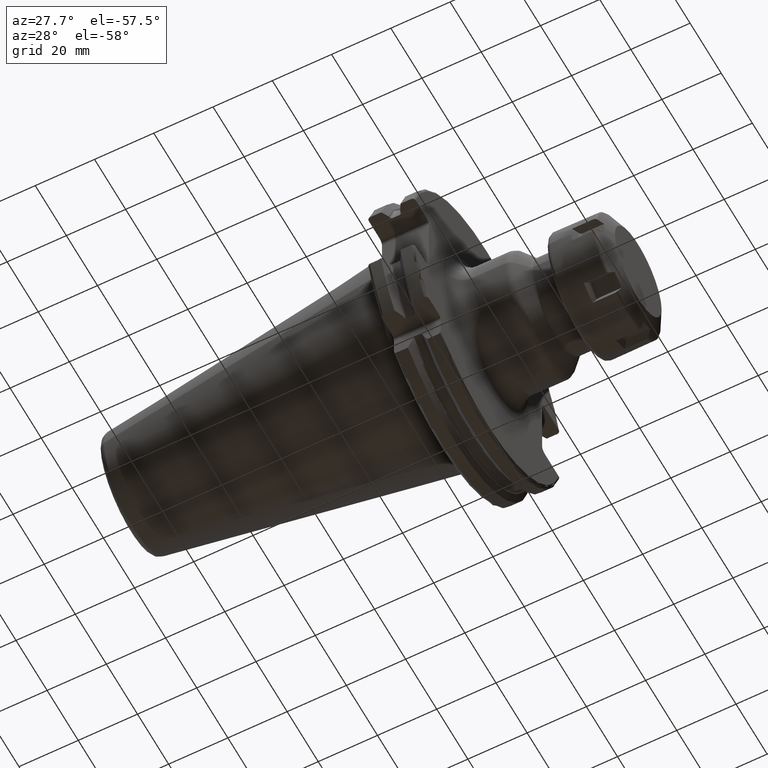
[diagram: clean part render]
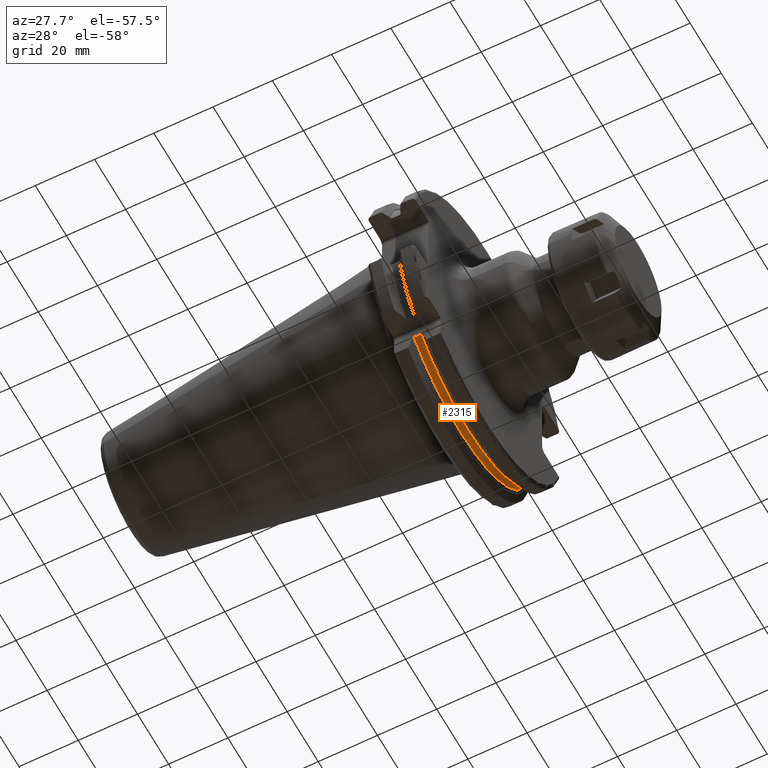
[diagram: same view with one face highlighted and labeled with its STEP entity id]
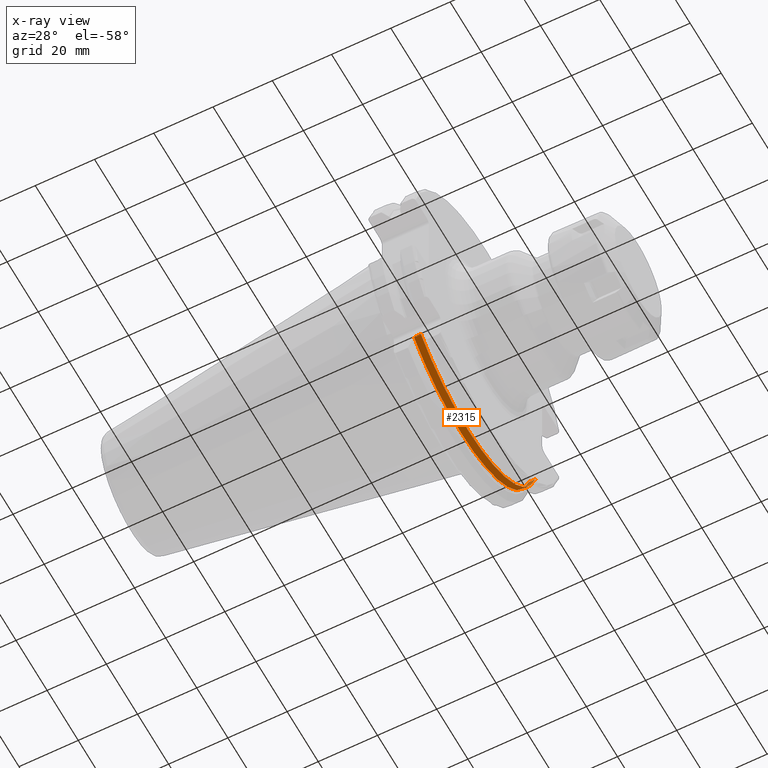
[diagram: x-ray of the same camera — body ghosted, the highlighted face saturated]
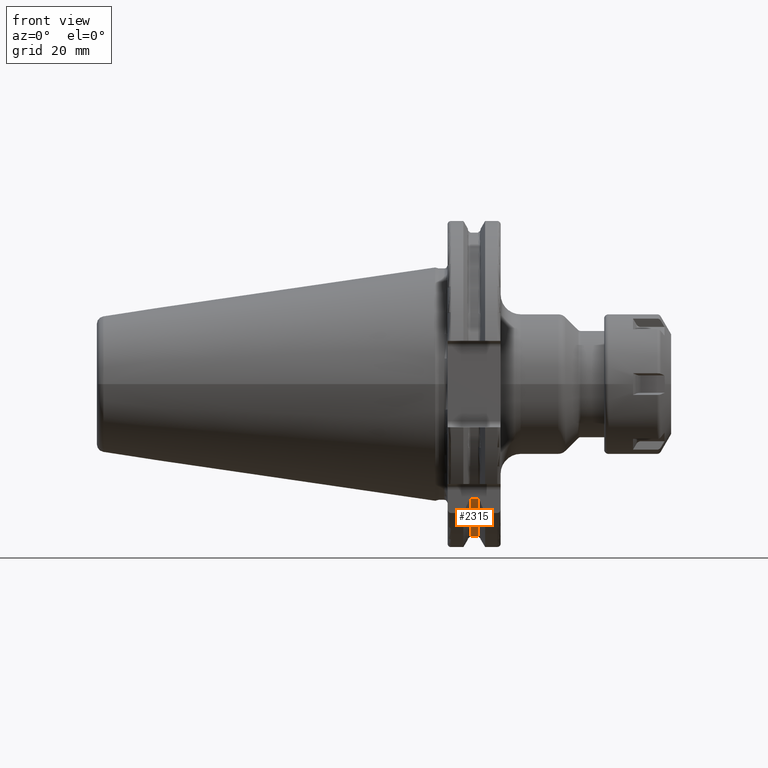
[diagram: same view with one face highlighted and labeled with its STEP entity id]
A machine part, auxiliary view. The second image highlights one B-rep face of the part: STEP entity #2315.
The next image is the same camera in x-ray: the body ghosted, the highlighted face saturated — about 1% of this face is hidden behind the body in this view.
A second angle (front view) of the same face is appended — the face is thin or edge-on in the first view.
In plain terms, the highlighted cylindrical surface (partial cylindrical patch) has radius 45.5 mm, axis along (1, 0, 0).
Its self-contained STEP definition (entity closure, byte-faithful):
#614=CARTESIAN_POINT('',(1.23375E1,0.E0,0.E0));
#615=DIRECTION('',(-1.E0,0.E0,0.E0));
#616=DIRECTION('',(0.E0,9.589673631435E-1,-2.835164835165E-1));
#617=AXIS2_PLACEMENT_3D('',#614,#615,#616);
#657=DIRECTION('',(1.E0,0.E0,0.E0));
#658=VECTOR('',#657,2.325E0);
#659=CARTESIAN_POINT('',(1.00125E1,4.363301502303E1,-1.29E1));
#660=LINE('',#659,#658);
#661=CARTESIAN_POINT('',(1.00125E1,0.E0,0.E0));
#662=DIRECTION('',(-1.E0,0.E0,0.E0));
#663=DIRECTION('',(0.E0,9.589673631435E-1,-2.835164835165E-1));
#664=AXIS2_PLACEMENT_3D('',#661,#662,#663);
#666=DIRECTION('',(1.E0,0.E0,0.E0));
#667=VECTOR('',#666,2.325E0);
#668=CARTESIAN_POINT('',(1.00125E1,-2.985E1,-3.433988206153E1));
#669=LINE('',#668,#667);
#692=CARTESIAN_POINT('',(1.00125E1,4.363301502303E1,-1.29E1));
#1430=VERTEX_POINT('',#692);
#1432=CARTESIAN_POINT('',(1.23375E1,4.363301502303E1,-1.29E1));
#1433=VERTEX_POINT('',#1432);
#1471=CARTESIAN_POINT('',(1.00125E1,-2.985E1,-3.433988206153E1));
#1472=VERTEX_POINT('',#1471);
#1473=CARTESIAN_POINT('',(1.23375E1,-2.985E1,-3.433988206153E1));
#1474=VERTEX_POINT('',#1473);
#2302=CARTESIAN_POINT('',(7.325E0,0.E0,0.E0));
#2303=DIRECTION('',(1.E0,0.E0,0.E0));
#2304=DIRECTION('',(0.E0,-1.E0,0.E0));
#2305=AXIS2_PLACEMENT_3D('',#2302,#2303,#2304);
#2306=CYLINDRICAL_SURFACE('',#2305,4.55E1);
#2307=ORIENTED_EDGE('',*,*,#1928,.F.);
#2309=ORIENTED_EDGE('',*,*,#2308,.T.);
#2311=ORIENTED_EDGE('',*,*,#2310,.T.);
#2312=ORIENTED_EDGE('',*,*,#2280,.F.);
#2313=EDGE_LOOP('',(#2307,#2309,#2311,#2312));
#2314=FACE_OUTER_BOUND('',#2313,.F.);
#2315=ADVANCED_FACE('',(#2314),#2306,.T.);
#618=CIRCLE('',#617,4.55E1);
#665=CIRCLE('',#664,4.55E1);
#1928=EDGE_CURVE('',#1430,#1433,#660,.T.);
#2280=EDGE_CURVE('',#1433,#1474,#618,.T.);
#2308=EDGE_CURVE('',#1430,#1472,#665,.T.);
#2310=EDGE_CURVE('',#1472,#1474,#669,.T.);